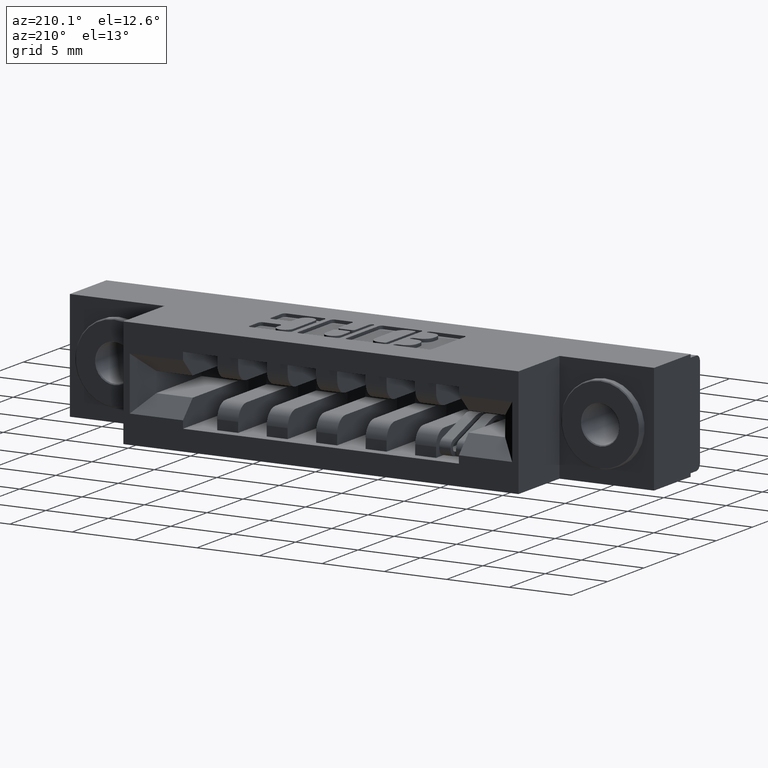
[diagram: clean part render]
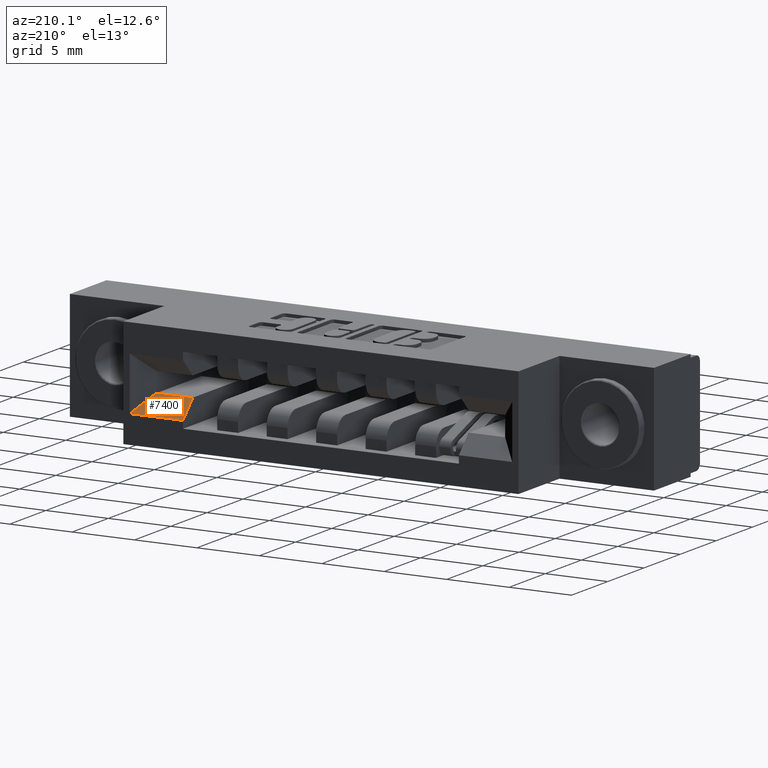
[diagram: same view with one face highlighted and labeled with its STEP entity id]
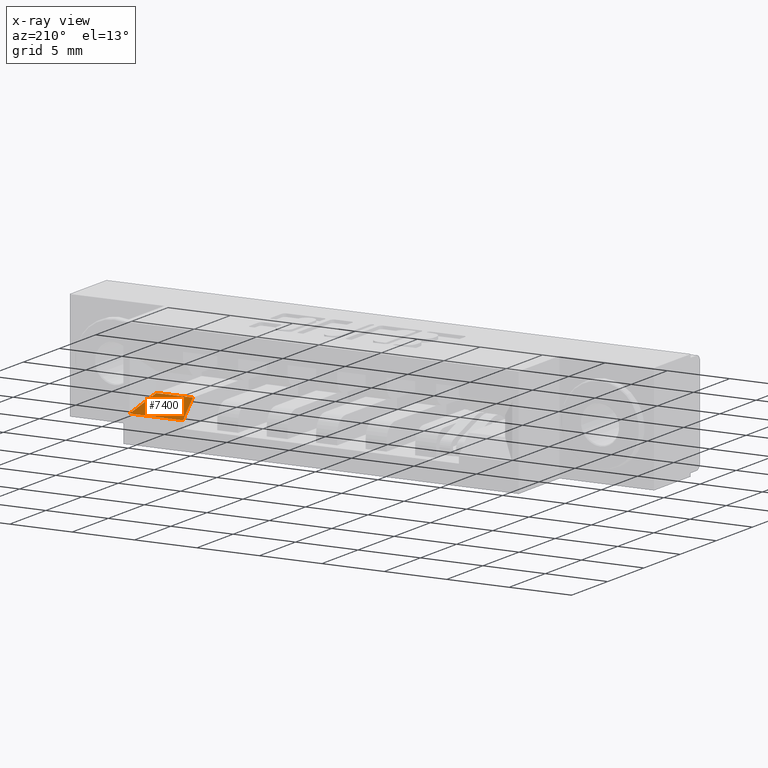
[diagram: x-ray of the same camera — body ghosted, the highlighted face saturated]
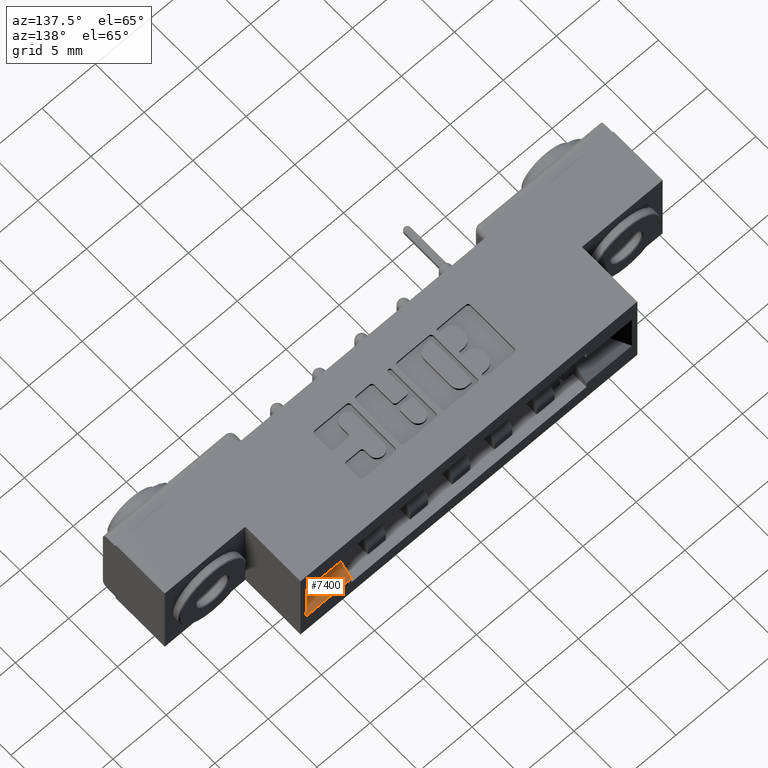
[diagram: same view with one face highlighted and labeled with its STEP entity id]
A machine part, auxiliary view. The second image highlights one B-rep face of the part: STEP entity #7400.
The next image is the same camera in x-ray: the body ghosted, the highlighted face saturated — about 0% of this face is hidden behind the body in this view.
A second angle (auxiliary view) of the same face is appended — the face is thin or edge-on in the first view.
In plain terms, the highlighted planar face has unit normal (0, -0.7071, -0.7071).
Its self-contained STEP definition (entity closure, byte-faithful):
#103 = LINE ( 'NONE', #1811, #4185 ) ;
#190 = ORIENTED_EDGE ( 'NONE', *, *, #8418, .F. ) ;
#216 = AXIS2_PLACEMENT_3D ( 'NONE', #5523, #3090, #8685 ) ;
#632 = LINE ( 'NONE', #10033, #6901 ) ;
#827 = VERTEX_POINT ( 'NONE', #6035 ) ;
#963 = DIRECTION ( 'NONE',  ( -1.000000000000000000, 0.0000000000000000000, 0.0000000000000000000 ) ) ;
#1087 = EDGE_LOOP ( 'NONE', ( #5669, #7795, #2077, #190 ) ) ;
#1202 = DIRECTION ( 'NONE',  ( 1.000000000000000000, 0.0000000000000000000, 0.0000000000000000000 ) ) ;
#1613 = LINE ( 'NONE', #4231, #9960 ) ;
#1811 = CARTESIAN_POINT ( 'NONE',  ( 1.355999999999999700, 0.4200000000000003200, -0.2025000000000001200 ) ) ;
#2077 = ORIENTED_EDGE ( 'NONE', *, *, #7651, .F. ) ;
#2596 = VERTEX_POINT ( 'NONE', #9571 ) ;
#2948 = EDGE_CURVE ( 'NONE', #827, #7940, #632, .T. ) ;
#3090 = DIRECTION ( 'NONE',  ( 0.0000000000000000000, -0.7071067811865491300, -0.7071067811865459100 ) ) ;
#3429 = EDGE_CURVE ( 'NONE', #2596, #7940, #4477, .T. ) ;
#3458 = DIRECTION ( 'NONE',  ( -0.0000000000000000000, 0.7071067811865459100, -0.7071067811865491300 ) ) ;
#3559 = VERTEX_POINT ( 'NONE', #5933 ) ;
#4185 = VECTOR ( 'NONE', #3458, 39.37007874015748100 ) ;
#4231 = CARTESIAN_POINT ( 'NONE',  ( 0.3709999999999996100, 0.4200000000000003200, -0.2025000000000001200 ) ) ;
#4477 = LINE ( 'NONE', #7445, #8466 ) ;
#5523 = CARTESIAN_POINT ( 'NONE',  ( 0.3709999999999996100, 0.4200000000000003200, -0.2025000000000001200 ) ) ;
#5669 = ORIENTED_EDGE ( 'NONE', *, *, #3429, .T. ) ;
#5933 = CARTESIAN_POINT ( 'NONE',  ( 1.355999999999999700, 0.4200000000000003200, -0.2025000000000001200 ) ) ;
#6035 = CARTESIAN_POINT ( 'NONE',  ( 1.355999999999999700, 0.4729999999999999800, -0.2555000000000000600 ) ) ;
#6901 = VECTOR ( 'NONE', #1202, 39.37007874015748100 ) ;
#7314 = DIRECTION ( 'NONE',  ( 0.5773502691896268400, 0.5773502691896238400, -0.5773502691896265100 ) ) ;
#7400 = ADVANCED_FACE ( 'NONE', ( #8797 ), #10290, .F. ) ;
#7445 = CARTESIAN_POINT ( 'NONE',  ( 1.104333333333332300, 0.05333333333333376700, 0.1641666666666680400 ) ) ;
#7651 = EDGE_CURVE ( 'NONE', #3559, #827, #103, .T. ) ;
#7795 = ORIENTED_EDGE ( 'NONE', *, *, #2948, .F. ) ;
#7940 = VERTEX_POINT ( 'NONE', #9418 ) ;
#8418 = EDGE_CURVE ( 'NONE', #2596, #3559, #1613, .T. ) ;
#8466 = VECTOR ( 'NONE', #7314, 39.37007874015748900 ) ;
#8685 = DIRECTION ( 'NONE',  ( 0.0000000000000000000, 0.7071067811865459100, -0.7071067811865491300 ) ) ;
#8797 = FACE_OUTER_BOUND ( 'NONE', #1087, .T. ) ;
#9418 = CARTESIAN_POINT ( 'NONE',  ( 1.524000000000000700, 0.4729999999999999800, -0.2555000000000000600 ) ) ;
#9571 = CARTESIAN_POINT ( 'NONE',  ( 1.471000000000000800, 0.4200000000000002100, -0.2025000000000001200 ) ) ;
#9960 = VECTOR ( 'NONE', #963, 39.37007874015748100 ) ;
#10033 = CARTESIAN_POINT ( 'NONE',  ( 0.0000000000000000000, 0.4729999999999999800, -0.2555000000000000600 ) ) ;
#10290 = PLANE ( 'NONE',  #216 ) ;